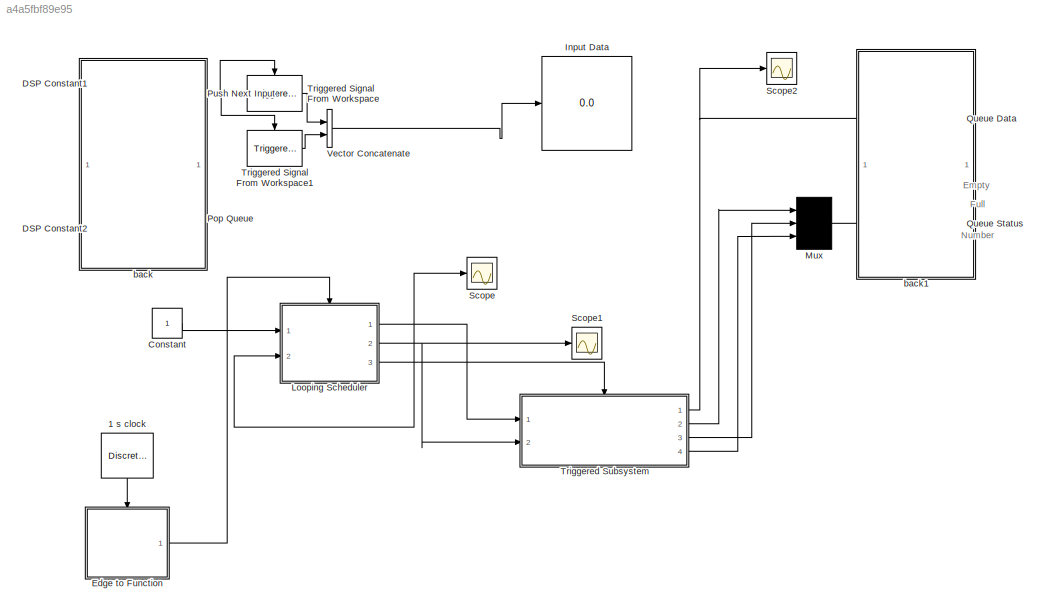
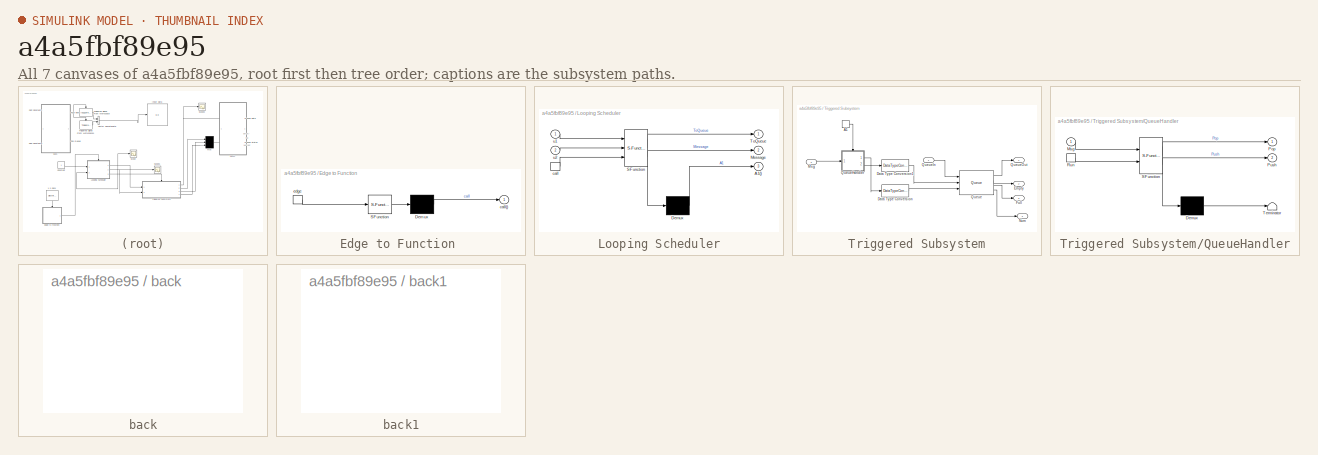
[diagram: thumbnail index - all 7 canvases of the model, root first then tree order]
MODEL slx_a4a5fbf89e95
KIND model
CONFIG AbsTol = auto
CONFIG EnableMultiTasking = off
CONFIG FixedStep = auto
CONFIG MaxStep = auto
CONFIG MinStep = auto
CONFIG RelTol = 1e-3
CONFIG SampleTimeConstraint = Unconstrained
CONFIG Solver = VariableStepAuto
CONFIG SolverName = VariableStepAuto
CONFIG StartTime = 0.0
CONFIG StopTime = 10
BLOCK [DiscretePulseGenerator] 1 s clock
  Period = 1
  Ports = [0, 1]
  PulseType = Time based
  PulseWidth = 10
BLOCK [Constant] Constant
BLOCK [Constant] DSP Constant1
  Commented = on
  SampleTime = 4
BLOCK [Constant] DSP Constant2
  Commented = on
  SampleTime = 4
  Value = 0
BLOCK [SubSystem] Edge to Function 
  ErrorFcn = Stateflow.Translate.translate
  PermitHierarchicalResolution = ExplicitOnly
  Ports = [0, 1, 0, 1]
  RequestExecContextInheritance = off
  SFBlockType = Chart
  TreatAsAtomicUnit = on
BLOCK [Demux] Edge to Function / Demux 
  Outputs = 1
  Ports = [1, 1]
BLOCK [S-Function] Edge to Function / SFunction 
  EnableBusSupport = on
  FunctionName = sf_sfun
  PortCounts = [1 1]
  Ports = [1, 1]
  SFcnIsStateOwnerBlock = off
  SFunctionDeploymentMode = off
  Tag = Stateflow S-Function f_trigger_queuetest 2
BLOCK [Outport] Edge to Function /call()
  IconDisplay = Port number
BLOCK [TriggerPort] Edge to Function /edge
  Ports = [0, 1]
  ShowOutputPort = on
  VariantControl = Variant
BLOCK [Display] Input Data
  Commented = on
  Decimation = 1
  Ports = [1]
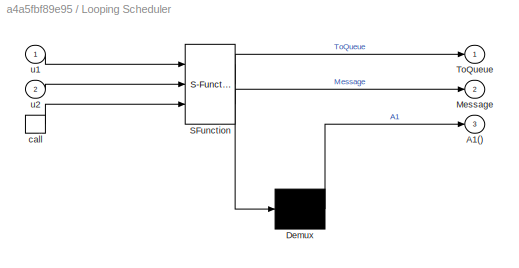
BLOCK [SubSystem] Looping Scheduler
  ErrorFcn = Stateflow.Translate.translate
  PermitHierarchicalResolution = ExplicitOnly
  Ports = [2, 3, 0, 1]
  RequestExecContextInheritance = off
  SFBlockType = Chart
  TreatAsAtomicUnit = on
BLOCK [Demux] Looping Scheduler/ Demux 
  Outputs = 1
  Ports = [1, 1]
BLOCK [S-Function] Looping Scheduler/ SFunction 
  EnableBusSupport = on
  FunctionName = sf_sfun
  PortCounts = [3 3]
  Ports = [3, 3]
  SFcnIsStateOwnerBlock = off
  SFunctionDeploymentMode = off
  Tag = Stateflow S-Function f_trigger_queuetest 1
BLOCK [Outport] Looping Scheduler/A1()
  IconDisplay = Port number
  Port = 3
BLOCK [Outport] Looping Scheduler/Message
  IconDisplay = Port number
  Port = 2
BLOCK [Outport] Looping Scheduler/ToQueue
  IconDisplay = Port number
BLOCK [TriggerPort] Looping Scheduler/call
  Ports = [0, 1]
  ShowOutputPort = on
  StatesWhenEnabling = held
  TriggerType = function-call
  VariantControl = (inherit)
BLOCK [Inport] Looping Scheduler/u1
  IconDisplay = Port number
BLOCK [Inport] Looping Scheduler/u2
  IconDisplay = Port number
  Port = 2
BLOCK [Mux] Mux
  Commented = on
  DisplayOption = signals
  Inputs = 3
  Ports = [3, 1]
BLOCK [ManualSwitch] Pop Queue
  Commented = on
BLOCK [ManualSwitch] Push Next Input
  Commented = on
  CurrentSetting = 0
BLOCK [Display] Queue Data
  Decimation = 1
  Ports = [1]
BLOCK [Display] Queue Status
  Decimation = 1
  Ports = [1]
BLOCK [Scope] Scope
  Floating = off
  NumInputPorts = 1
  Ports = [1]
  ScopeSpecificationString = Simulink.scopes.TimeScopeBlockCfg('CurrentConfiguration', extmgr.ConfigurationSet(extmgr.Configuration('Core','General UI',true),extmgr.Configuration('Core','Source UI',true),extmgr.Configuration('Sources','WiredSimulink',true),extmgr.Configuration('Visuals','Time Domain',true,'SerializedDisplays',{struct('MinYLimReal','-1.125','MaxYLimReal','10.125','YLabelReal','','MinYLimMag','0.00000','MaxYLim...<+1337ch>
BLOCK [Scope] Scope1
  Floating = off
  NumInputPorts = 1
  Ports = [1]
  ScopeSpecificationString = Simulink.scopes.TimeScopeBlockCfg('CurrentConfiguration', extmgr.ConfigurationSet(extmgr.Configuration('Core','General UI',true),extmgr.Configuration('Core','Source UI',true),extmgr.Configuration('Sources','WiredSimulink',true,'DataLoggingVariableName','ScopeData1'),extmgr.Configuration('Visuals','Time Domain',true,'SerializedDisplays',{struct('MinYLimReal','-0.125','MaxYLimReal','1.125','YLabelRe...<+1372ch>
BLOCK [Scope] Scope2
  Floating = off
  NumInputPorts = 1
  Ports = [1]
  ScopeSpecificationString = Simulink.scopes.TimeScopeBlockCfg('CurrentConfiguration', extmgr.ConfigurationSet(extmgr.Configuration('Core','General UI',true),extmgr.Configuration('Core','Source UI',true),extmgr.Configuration('Sources','WiredSimulink',true,'DataLoggingVariableName','ScopeData2'),extmgr.Configuration('Visuals','Time Domain',true,'SerializedDisplays',{struct('MinYLimReal','-1.00000','MaxYLimReal','1.00000','YLab...<+1380ch>
BLOCK [Reference] Triggered Signal From Workspace  REF=dspsigops/Triggered Signal
From Workspace
  Commented = on
  Ports = [0, 1, 0, 1]
  SourceBlock = dspsigops/Triggered Signal\nFrom Workspace
  SourceProductBaseCode = DS
  SourceProductName = DSP System Toolbox
  SourceType = Triggered Signal From Workspace
BLOCK [Reference] Triggered Signal From Workspace1  REF=dspsigops/Triggered Signal
From Workspace
  Commented = on
  Ports = [0, 1, 0, 1]
  SourceBlock = dspsigops/Triggered Signal\nFrom Workspace
  SourceProductBaseCode = DS
  SourceProductName = DSP System Toolbox
  SourceType = Triggered Signal From Workspace
BLOCK [SubSystem] Triggered Subsystem
  Ports = [2, 4, 0, 1]
  RequestExecContextInheritance = off
  TreatAsAtomicUnit = on
BLOCK [TriggerPort] Triggered Subsystem/A1
  OutputDataType = int8
  PortDimensions = 1
  Ports = [0, 1]
  ShowOutputPort = on
  StatesWhenEnabling = held
  TriggerType = function-call
  VariantControl = Variant
BLOCK [DataTypeConversion] Triggered Subsystem/Data Type Conversion
  OutDataTypeStr = double
  RndMeth = Floor
  SaturateOnIntegerOverflow = off
BLOCK [DataTypeConversion] Triggered Subsystem/Data Type Conversion1
  OutDataTypeStr = double
  RndMeth = Floor
  SaturateOnIntegerOverflow = off
BLOCK [Outport] Triggered Subsystem/Empty
  IconDisplay = Port number
  OutDataTypeStr = boolean
  Port = 2
BLOCK [Outport] Triggered Subsystem/Full
  IconDisplay = Port number
  OutDataTypeStr = boolean
  Port = 3
BLOCK [Inport] Triggered Subsystem/Msg
  IconDisplay = Port number
  OutDataTypeStr = double
  Port = 2
BLOCK [Outport] Triggered Subsystem/Num
  IconDisplay = Port number
  OutDataTypeStr = double
  Port = 4
BLOCK [Reference] Triggered Subsystem/Queue  REF=dspbuff3/Queue
  Ports = [3, 4]
  SourceBlock = dspbuff3/Queue
  SourceProductBaseCode = DS
  SourceProductName = DSP System Toolbox
  SourceType = Queue
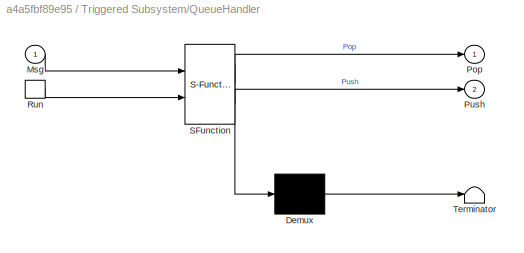
BLOCK [SubSystem] Triggered Subsystem/QueueHandler
  ErrorFcn = Stateflow.Translate.translate
  PermitHierarchicalResolution = ExplicitOnly
  Ports = [1, 2, 0, 1]
  RequestExecContextInheritance = off
  SFBlockType = Chart
  TreatAsAtomicUnit = on
BLOCK [Demux] Triggered Subsystem/QueueHandler/ Demux 
  Outputs = 1
  Ports = [1, 1]
BLOCK [S-Function] Triggered Subsystem/QueueHandler/ SFunction 
  EnableBusSupport = on
  FunctionName = sf_sfun
  PortCounts = [2 3]
  Ports = [2, 3]
  SFcnIsStateOwnerBlock = off
  SFunctionDeploymentMode = off
  Tag = Stateflow S-Function f_trigger_queuetest 3
BLOCK [Terminator] Triggered Subsystem/QueueHandler/ Terminator 
BLOCK [Inport] Triggered Subsystem/QueueHandler/Msg
  IconDisplay = Port number
BLOCK [Outport] Triggered Subsystem/QueueHandler/Pop
  IconDisplay = Port number
BLOCK [Outport] Triggered Subsystem/QueueHandler/Push
  IconDisplay = Port number
  Port = 2
BLOCK [TriggerPort] Triggered Subsystem/QueueHandler/Run
  Ports = [0, 1]
  ShowOutputPort = on
  StatesWhenEnabling = held
  TriggerType = either
  VariantControl = (inherit)
BLOCK [Inport] Triggered Subsystem/QueueIn
  IconDisplay = Port number
  OutDataTypeStr = double
  VarSizeSig = No
BLOCK [Outport] Triggered Subsystem/QueueOut
  IconDisplay = Port number
  OutDataTypeStr = double
BLOCK [Concatenate] Vector Concatenate
  Commented = on
  Ports = [2, 1]
BLOCK [SubSystem] back
  Commented = on
  Ports = []
  RequestExecContextInheritance = off
BLOCK [SubSystem] back1
  Ports = []
  RequestExecContextInheritance = off
ANNOTATION (root): Empty
ANNOTATION (root): Full
ANNOTATION (root): Number
LINE 1 s clock:1 -> Edge to Function :trigger
LINE Constant:1 -> Looping Scheduler:1
NET DSP Constant1:1 -> Pop Queue:1, Push Next Input:1
NET DSP Constant2:1 -> Pop Queue:2, Push Next Input:2
LINE Edge to Function :1 -> Looping Scheduler:trigger
NET Looping Scheduler:1 -> Looping Scheduler:2, Scope:1, Triggered Subsystem:1
NET Looping Scheduler:2 -> Scope1:1, Triggered Subsystem:2
LINE Looping Scheduler:3 -> Triggered Subsystem:trigger
LINE Mux:1 -> Queue Status:1
NET Push Next Input:1 -> Triggered Signal From Workspace1:trigger, Triggered Signal From Workspace:trigger
LINE Triggered Signal From Workspace1:1 -> Vector Concatenate:2
LINE Triggered Signal From Workspace:1 -> Vector Concatenate:1
LINE Triggered Subsystem/A1:1 -> Triggered Subsystem/QueueHandler:trigger
LINE Triggered Subsystem/Data Type Conversion1:1 -> Triggered Subsystem/Queue:2
LINE Triggered Subsystem/Data Type Conversion:1 -> Triggered Subsystem/Queue:3
LINE Triggered Subsystem/Msg:1 -> Triggered Subsystem/QueueHandler:1
LINE Triggered Subsystem/Queue:1 -> Triggered Subsystem/QueueOut:1
LINE Triggered Subsystem/Queue:2 -> Triggered Subsystem/Empty:1
LINE Triggered Subsystem/Queue:3 -> Triggered Subsystem/Full:1
LINE Triggered Subsystem/Queue:4 -> Triggered Subsystem/Num:1
LINE Triggered Subsystem/QueueHandler:1 -> Triggered Subsystem/Data Type Conversion:1
LINE Triggered Subsystem/QueueHandler:2 -> Triggered Subsystem/Data Type Conversion1:1
LINE Triggered Subsystem/QueueIn:1 -> Triggered Subsystem/Queue:1
NET Triggered Subsystem:1 -> Queue Data:1, Scope2:1
LINE Triggered Subsystem:2 -> Mux:1
LINE Triggered Subsystem:3 -> Mux:2
LINE Triggered Subsystem:4 -> Mux:3
LINE Vector Concatenate:1 -> Input Data:1
note: NET lines group one-source signal fan-out (src -> all destinations, sorted); 1:1 wires keep LINE
CHART Looping
Scheduler states=0 transitions=7
CHART Edge to
Function  states=0 transitions=1
CHART Triggered
Subsystem/QueueHandler states=0 transitions=10
